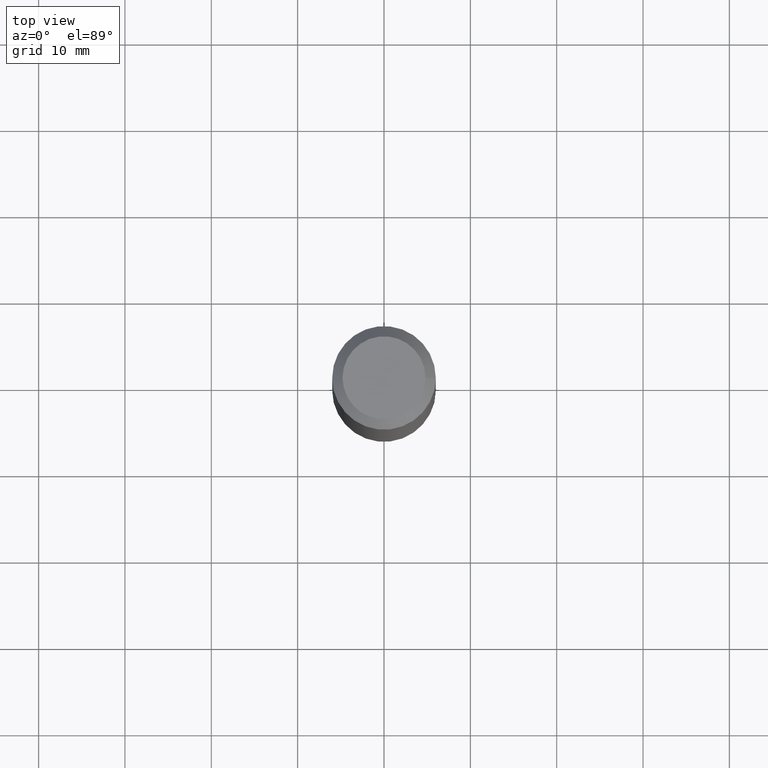
[diagram: clean part render]
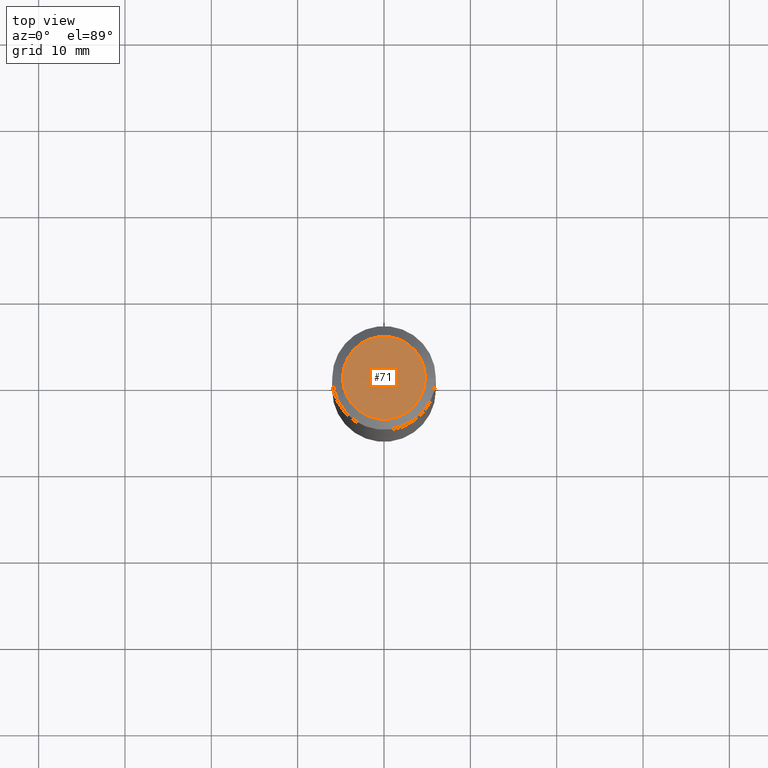
[diagram: same view with one face highlighted and labeled with its STEP entity id]
A machine part, top view. The second image highlights one B-rep face of the part: STEP entity #71.
In plain terms, the highlighted planar face has unit normal (0, 0, 1).
Its self-contained STEP definition (entity closure, byte-faithful):
#29 = DIRECTION ( 'NONE',  ( 1.000000000000000000, 0.0000000000000000000, -6.982962677686266711E-15 ) ) ;
#67 = CARTESIAN_POINT ( 'NONE',  ( 4.799999999999996270, 0.0000000000000000000, -3.351822085289405497E-14 ) ) ;
#70 = DIRECTION ( 'NONE',  ( 6.982962677686266711E-15, 0.0000000000000000000, 1.000000000000000000 ) ) ;
#71 = ADVANCED_FACE ( 'NONE', ( #103 ), #176, .T. ) ;
#80 = ORIENTED_EDGE ( 'NONE', *, *, #150, .T. ) ;
#88 = CARTESIAN_POINT ( 'NONE',  ( -1.515925944695570123E-30, 0.0000000000000000000, -2.170892233950556695E-16 ) ) ;
#103 = FACE_OUTER_BOUND ( 'NONE', #122, .T. ) ;
#122 = EDGE_LOOP ( 'NONE', ( #80 ) ) ;
#125 = CARTESIAN_POINT ( 'NONE',  ( 0.0000000000000000000, 0.0000000000000000000, 0.0000000000000000000 ) ) ;
#126 = DIRECTION ( 'NONE',  ( 6.982962677686266711E-15, 0.0000000000000000000, 1.000000000000000000 ) ) ;
#127 = AXIS2_PLACEMENT_3D ( 'NONE', #88, #70, #164 ) ;
#129 = CIRCLE ( 'NONE', #141, 4.799999999999996270 ) ;
#141 = AXIS2_PLACEMENT_3D ( 'NONE', #125, #126, #29 ) ;
#150 = EDGE_CURVE ( 'NONE', #161, #161, #129, .T. ) ;
#161 = VERTEX_POINT ( 'NONE', #67 ) ;
#164 = DIRECTION ( 'NONE',  ( 1.000000000000000000, 0.0000000000000000000, -6.982962677686266711E-15 ) ) ;
#176 = PLANE ( 'NONE',  #127 ) ;